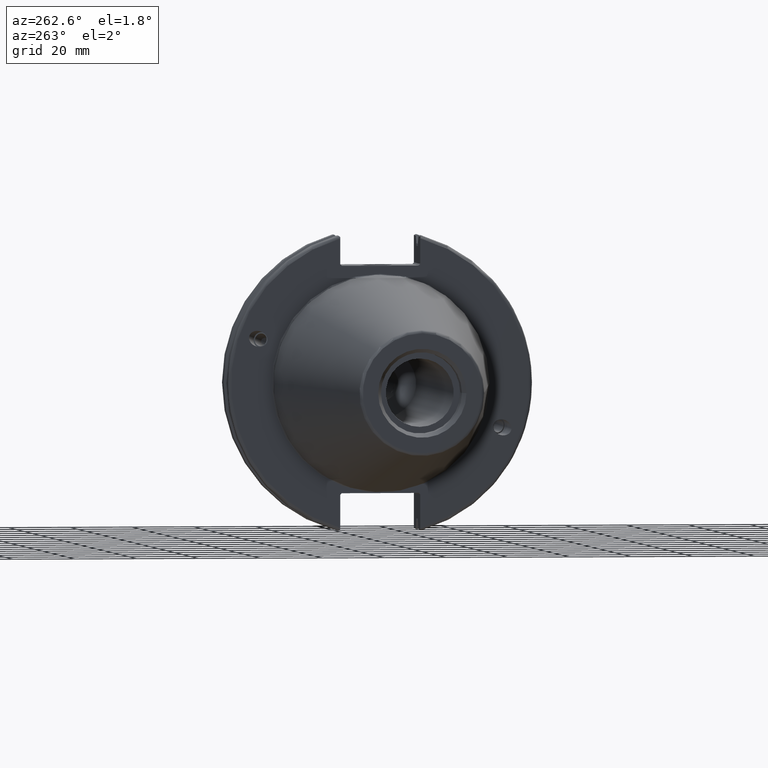
[diagram: clean part render]
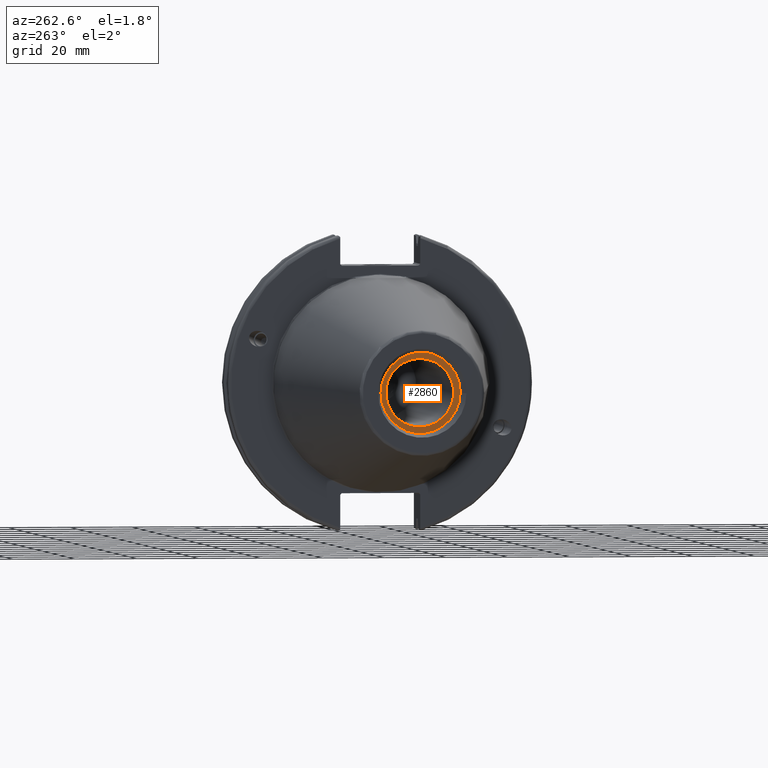
[diagram: same view with one face highlighted and labeled with its STEP entity id]
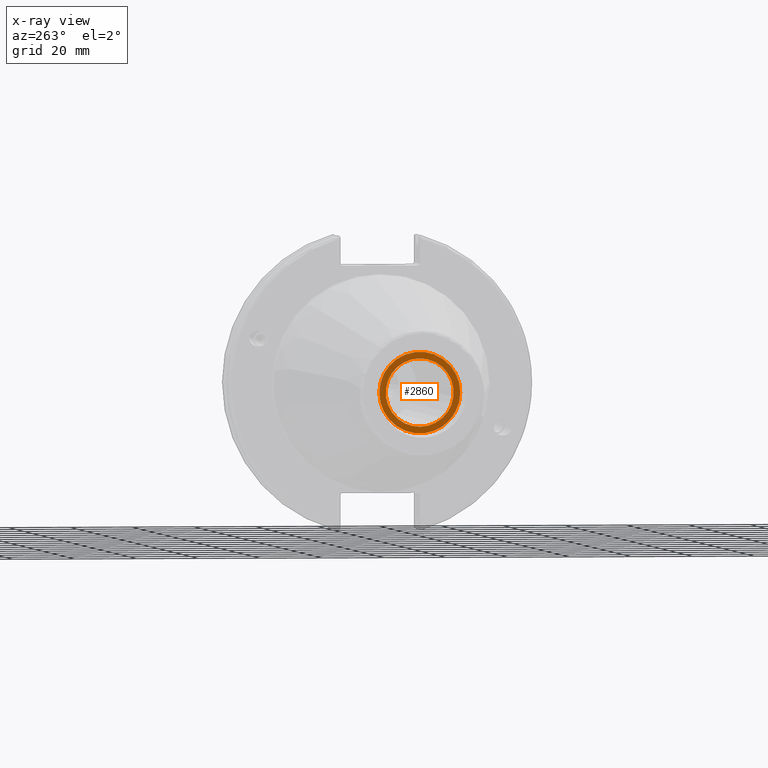
[diagram: x-ray of the same camera — body ghosted, the highlighted face saturated]
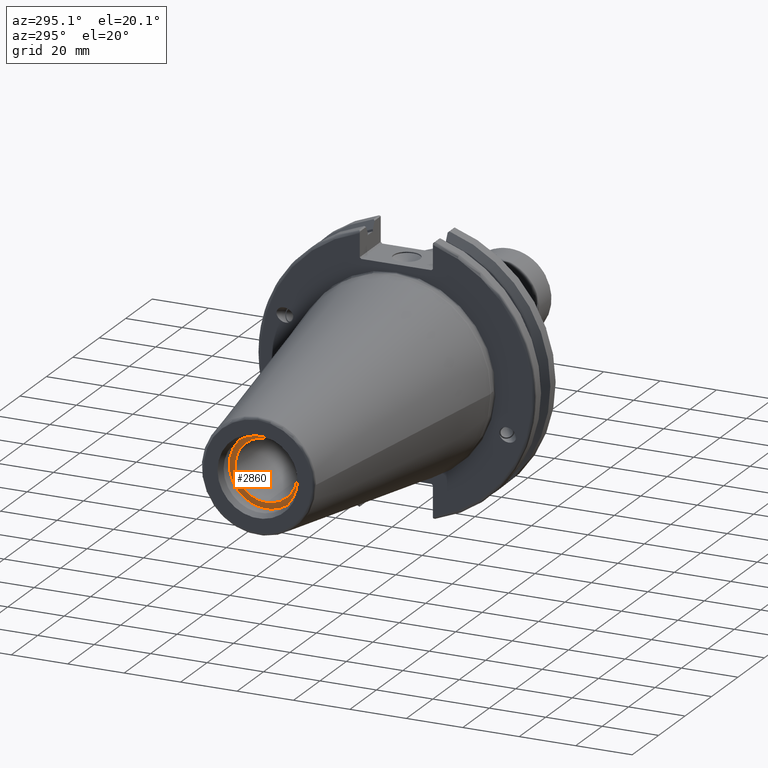
[diagram: same view with one face highlighted and labeled with its STEP entity id]
A machine part, auxiliary view. The second image highlights one B-rep face of the part: STEP entity #2860.
The next image is the same camera in x-ray: the body ghosted, the highlighted face saturated — about 0% of this face is hidden behind the body in this view.
A second angle (auxiliary view) of the same face is appended — the face is thin or edge-on in the first view.
In plain terms, the highlighted planar face has unit normal (-1, 0, 0).
Its self-contained STEP definition (entity closure, byte-faithful):
#602=FACE_BOUND('',#999,.T.);
#632=CIRCLE('',#3116,10.9855);
#685=CIRCLE('',#3240,13.1);
#834=FACE_OUTER_BOUND('',#998,.T.);
#998=EDGE_LOOP('',(#2455));
#999=EDGE_LOOP('',(#2456));
#1435=VERTEX_POINT('',#4544);
#1560=VERTEX_POINT('',#5240);
#1692=EDGE_CURVE('',#1435,#1435,#632,.T.);
#1874=EDGE_CURVE('',#1560,#1560,#685,.T.);
#2455=ORIENTED_EDGE('',*,*,#1874,.F.);
#2456=ORIENTED_EDGE('',*,*,#1692,.T.);
#2739=PLANE('',#3239);
#2860=ADVANCED_FACE('',(#834,#602),#2739,.T.);
#3116=AXIS2_PLACEMENT_3D('',#4545,#3520,#3521);
#3239=AXIS2_PLACEMENT_3D('',#5239,#3847,#3848);
#3240=AXIS2_PLACEMENT_3D('',#5241,#3849,#3850);
#3520=DIRECTION('center_axis',(1.,0.,0.));
#3521=DIRECTION('ref_axis',(0.,0.,1.));
#3847=DIRECTION('center_axis',(-1.,0.,0.));
#3848=DIRECTION('ref_axis',(0.,0.,1.));
#3849=DIRECTION('center_axis',(1.,0.,0.));
#3850=DIRECTION('ref_axis',(0.,0.,-1.));
#4544=CARTESIAN_POINT('',(-95.25,1.34533574120333E-15,-10.9855));
#4545=CARTESIAN_POINT('Origin',(-95.25,0.,0.));
#5239=CARTESIAN_POINT('Origin',(-95.25,13.1,0.));
#5240=CARTESIAN_POINT('',(-95.25,-13.1,-1.60428730688303E-15));
#5241=CARTESIAN_POINT('Origin',(-95.25,0.,0.));